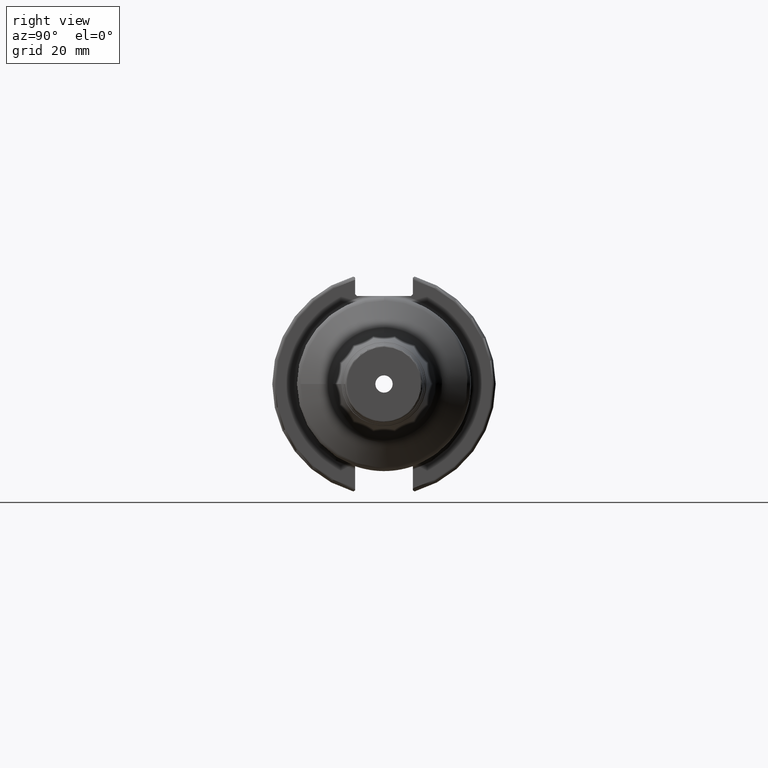
[diagram: clean part render]
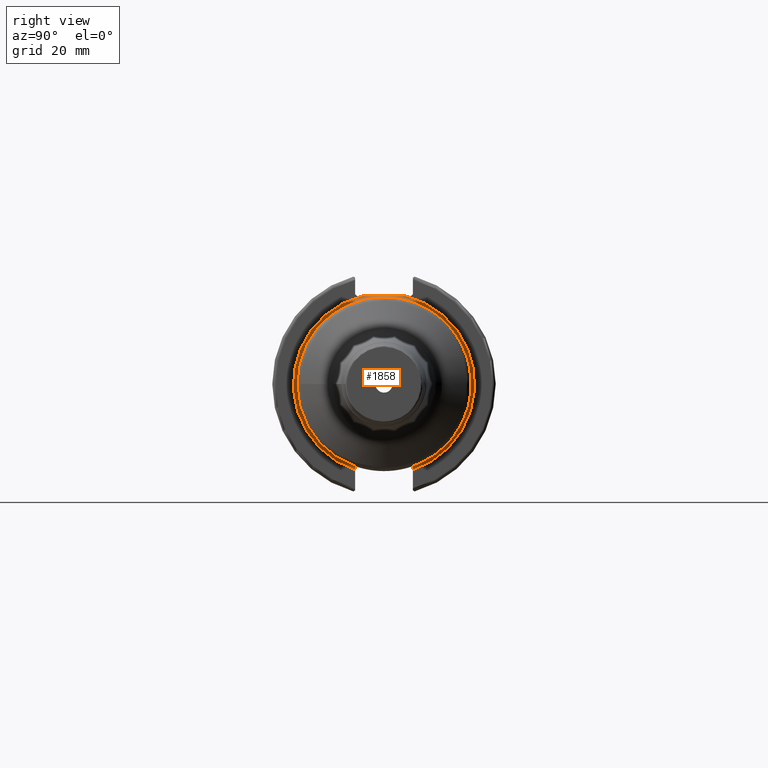
[diagram: same view with one face highlighted and labeled with its STEP entity id]
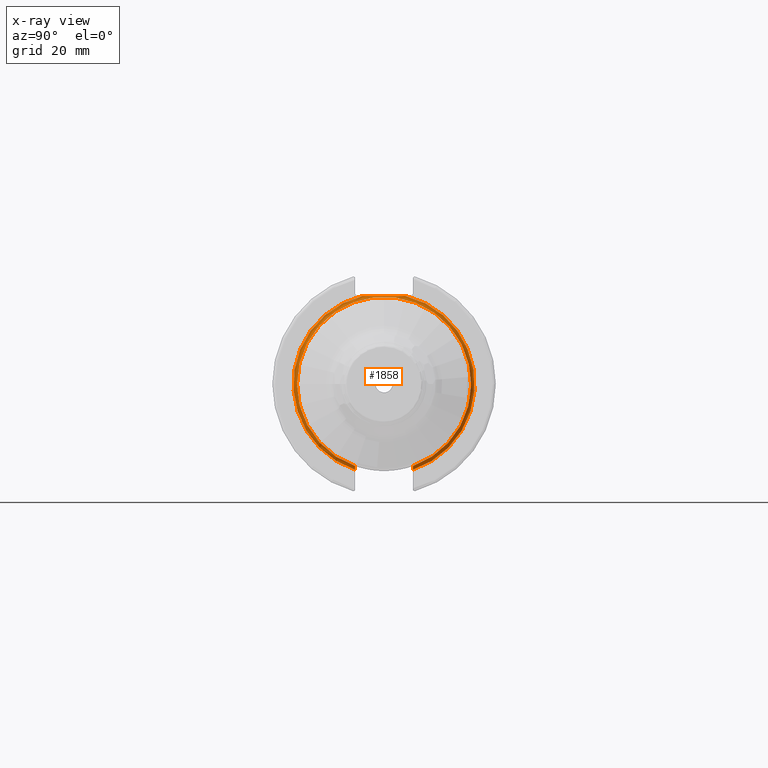
[diagram: x-ray of the same camera — body ghosted, the highlighted face saturated]
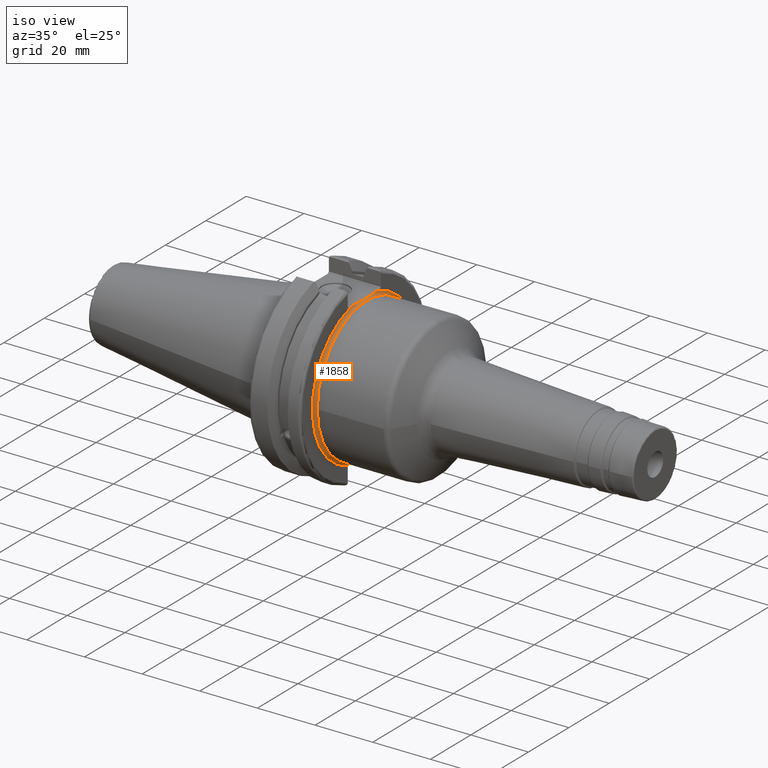
[diagram: same view with one face highlighted and labeled with its STEP entity id]
A machine part, right view. The second image highlights one B-rep face of the part: STEP entity #1858.
The next image is the same camera in x-ray: the body ghosted, the highlighted face saturated — about 4% of this face is hidden behind the body in this view.
A second angle (iso view) of the same face is appended — the face is thin or edge-on in the first view.
In plain terms, the highlighted toroidal blend (fillet) surface has major radius 25.75 mm and minor (blend) radius 1 mm.
Its self-contained STEP definition (entity closure, byte-faithful):
#96=TOROIDAL_SURFACE('',#2053,25.75,1.);
#123=B_SPLINE_CURVE_WITH_KNOTS('',3,(#3075,#3076,#3077,#3078,#3079,#3080,
#3081,#3082,#3083,#3084),.UNSPECIFIED.,.F.,.F.,(4,2,2,2,4),(1.28229186042809,
1.47392183654147,1.862003561099,2.25008528565653,2.44171526176991),
 .UNSPECIFIED.);
#124=B_SPLINE_CURVE_WITH_KNOTS('',3,(#3087,#3088,#3089,#3090,#3091,#3092,
#3093,#3094,#3095,#3096),.UNSPECIFIED.,.F.,.F.,(4,2,2,2,4),(0.152036209068872,
0.19179652975479,0.230554749961229,0.268011696377573,0.304368806480559),
 .UNSPECIFIED.);
#125=B_SPLINE_CURVE_WITH_KNOTS('',3,(#3098,#3099,#3100,#3101,#3102,#3103,
#3104,#3105,#3106,#3107),.UNSPECIFIED.,.F.,.F.,(4,2,2,2,4),(0.304368806480559,
0.340725916583545,0.378182862999889,0.416941083206328,0.456701403892246),
 .UNSPECIFIED.);
#213=FACE_OUTER_BOUND('',#323,.T.);
#323=EDGE_LOOP('',(#1384,#1385,#1386,#1387,#1388,#1389,#1390));
#618=CIRCLE('',#1975,24.75);
#619=CIRCLE('',#1976,24.75);
#674=CIRCLE('',#2054,25.75);
#675=CIRCLE('',#2055,25.75);
#745=VERTEX_POINT('',#2911);
#746=VERTEX_POINT('',#2912);
#751=VERTEX_POINT('',#2940);
#794=VERTEX_POINT('',#3073);
#795=VERTEX_POINT('',#3074);
#796=VERTEX_POINT('',#3085);
#797=VERTEX_POINT('',#3097);
#949=EDGE_CURVE('',#745,#751,#618,.T.);
#950=EDGE_CURVE('',#751,#746,#619,.T.);
#1015=EDGE_CURVE('',#794,#795,#123,.F.);
#1016=EDGE_CURVE('',#794,#796,#674,.T.);
#1017=EDGE_CURVE('',#745,#796,#124,.F.);
#1018=EDGE_CURVE('',#746,#797,#125,.T.);
#1019=EDGE_CURVE('',#797,#795,#675,.T.);
#1384=ORIENTED_EDGE('',*,*,#1015,.F.);
#1385=ORIENTED_EDGE('',*,*,#1016,.T.);
#1386=ORIENTED_EDGE('',*,*,#1017,.F.);
#1387=ORIENTED_EDGE('',*,*,#949,.T.);
#1388=ORIENTED_EDGE('',*,*,#950,.T.);
#1389=ORIENTED_EDGE('',*,*,#1018,.T.);
#1390=ORIENTED_EDGE('',*,*,#1019,.T.);
#1858=ADVANCED_FACE('',(#213),#96,.F.);
#1975=AXIS2_PLACEMENT_3D('',#2942,#2251,#2252);
#1976=AXIS2_PLACEMENT_3D('',#2943,#2253,#2254);
#2053=AXIS2_PLACEMENT_3D('',#3072,#2417,#2418);
#2054=AXIS2_PLACEMENT_3D('',#3086,#2419,#2420);
#2055=AXIS2_PLACEMENT_3D('',#3108,#2421,#2422);
#2251=DIRECTION('center_axis',(-1.,0.,0.));
#2252=DIRECTION('ref_axis',(0.,6.12323399573677E-17,1.));
#2253=DIRECTION('center_axis',(-1.,0.,0.));
#2254=DIRECTION('ref_axis',(0.,6.12323399573677E-17,1.));
#2417=DIRECTION('center_axis',(-1.,0.,0.));
#2418=DIRECTION('ref_axis',(0.,0.,1.));
#2419=DIRECTION('center_axis',(1.,0.,0.));
#2420=DIRECTION('ref_axis',(0.,6.12323399573677E-17,1.));
#2421=DIRECTION('center_axis',(1.,0.,0.));
#2422=DIRECTION('ref_axis',(0.,6.12323399573677E-17,1.));
#2911=CARTESIAN_POINT('',(20.05,-8.19,-23.3556502799644));
#2912=CARTESIAN_POINT('',(20.05,8.18999999999999,-23.3556502799644));
#2940=CARTESIAN_POINT('',(20.05,-24.75,-3.0310008278897E-15));
#2942=CARTESIAN_POINT('Origin',(20.05,0.,0.));
#2943=CARTESIAN_POINT('Origin',(20.05,0.,0.));
#3072=CARTESIAN_POINT('Origin',(20.05,0.,0.));
#3073=CARTESIAN_POINT('',(19.05,-6.16948133962654,25.));
#3074=CARTESIAN_POINT('',(19.05,6.16948133962654,25.));
#3075=CARTESIAN_POINT('Ctrl Pts',(19.05,6.16948133962654,25.));
#3076=CARTESIAN_POINT('Ctrl Pts',(19.05,5.53071475258195,25.));
#3077=CARTESIAN_POINT('Ctrl Pts',(19.0917093675371,4.76533047486056,25.));
#3078=CARTESIAN_POINT('Ctrl Pts',(19.2334466867335,2.83816328553263,25.));
#3079=CARTESIAN_POINT('Ctrl Pts',(19.3885621722339,1.29360574852511,25.));
#3080=CARTESIAN_POINT('Ctrl Pts',(19.3885621722339,-1.29360574852511,25.));
#3081=CARTESIAN_POINT('Ctrl Pts',(19.2334466867335,-2.83816328553263,25.));
#3082=CARTESIAN_POINT('Ctrl Pts',(19.0917093675371,-4.76533047486056,25.));
#3083=CARTESIAN_POINT('Ctrl Pts',(19.05,-5.53071475258195,25.));
#3084=CARTESIAN_POINT('Ctrl Pts',(19.05,-6.16948133962654,25.));
#3085=CARTESIAN_POINT('',(19.05,-8.19,-24.4128326910254));
#3086=CARTESIAN_POINT('Origin',(19.05,0.,0.));
#3087=CARTESIAN_POINT('Ctrl Pts',(19.05,-8.19,-24.4128326910254));
#3088=CARTESIAN_POINT('Ctrl Pts',(19.05,-8.19,-24.280298288739));
#3089=CARTESIAN_POINT('Ctrl Pts',(19.079885359023,-8.19,-24.124090110551));
#3090=CARTESIAN_POINT('Ctrl Pts',(19.177275426903,-8.19,-23.8811560320461));
#3091=CARTESIAN_POINT('Ctrl Pts',(19.2609009617474,-8.19,-23.7506111583087));
#3092=CARTESIAN_POINT('Ctrl Pts',(19.4373931081247,-8.19,-23.5678758115065));
#3093=CARTESIAN_POINT('Ctrl Pts',(19.5602603745075,-8.19,-23.4821320058467));
#3094=CARTESIAN_POINT('Ctrl Pts',(19.7864204604307,-8.19,-23.3852265342659));
#3095=CARTESIAN_POINT('Ctrl Pts',(19.92880963299,-8.19,-23.3556502799644));
#3096=CARTESIAN_POINT('Ctrl Pts',(20.05,-8.19,-23.3556502799644));
#3097=CARTESIAN_POINT('',(19.05,8.19,-24.4128326910254));
#3098=CARTESIAN_POINT('Ctrl Pts',(20.05,8.19,-23.3556502799644));
#3099=CARTESIAN_POINT('Ctrl Pts',(19.92880963299,8.19,-23.3556502799644));
#3100=CARTESIAN_POINT('Ctrl Pts',(19.7864204604307,8.19,-23.3852265342659));
#3101=CARTESIAN_POINT('Ctrl Pts',(19.5602603745075,8.19,-23.4821320058467));
#3102=CARTESIAN_POINT('Ctrl Pts',(19.4373931081247,8.19,-23.5678758115065));
#3103=CARTESIAN_POINT('Ctrl Pts',(19.2609009617474,8.19,-23.7506111583087));
#3104=CARTESIAN_POINT('Ctrl Pts',(19.177275426903,8.19,-23.8811560320461));
#3105=CARTESIAN_POINT('Ctrl Pts',(19.079885359023,8.19,-24.124090110551));
#3106=CARTESIAN_POINT('Ctrl Pts',(19.05,8.19,-24.280298288739));
#3107=CARTESIAN_POINT('Ctrl Pts',(19.05,8.19,-24.4128326910254));
#3108=CARTESIAN_POINT('Origin',(19.05,0.,0.));